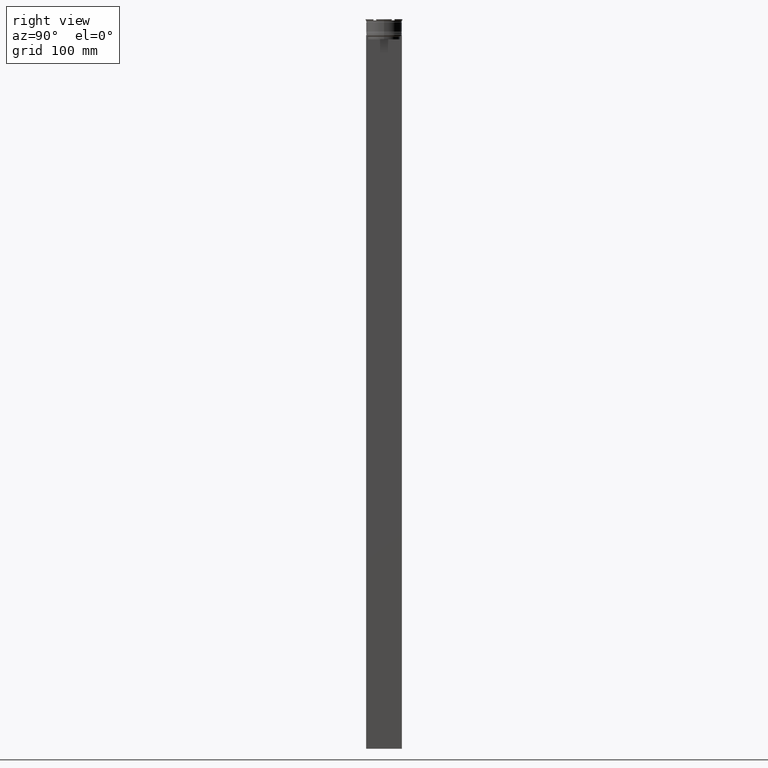
[diagram: clean part render]
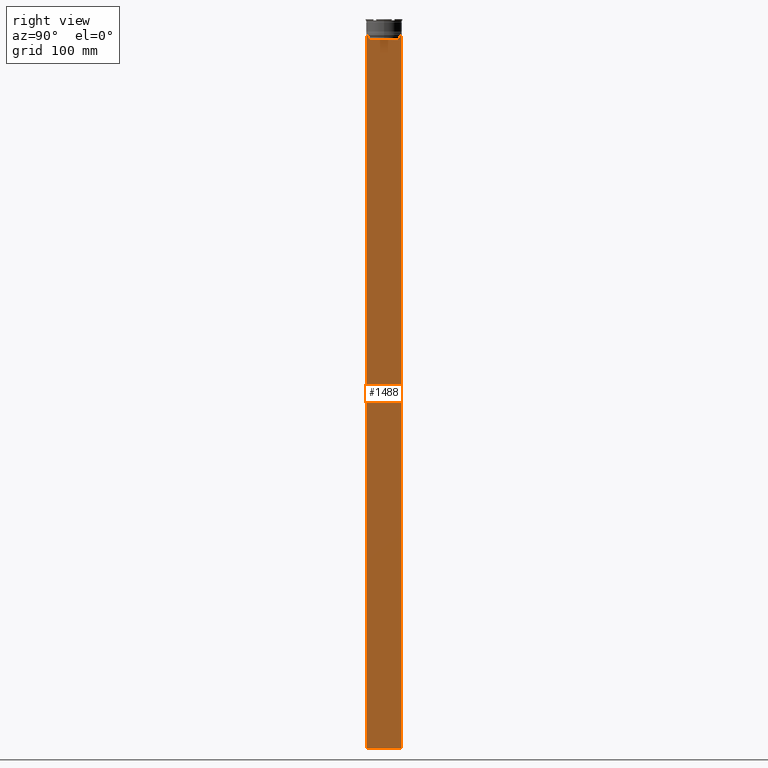
[diagram: same view with one face highlighted and labeled with its STEP entity id]
A machine part, right view. The second image highlights one B-rep face of the part: STEP entity #1488.
In plain terms, the highlighted planar face has unit normal (-1, 0, 0).
Its self-contained STEP definition (entity closure, byte-faithful):
#29 = ORIENTED_EDGE ( 'NONE', *, *, #2110, .T. ) ;
#30 = VERTEX_POINT ( 'NONE', #1885 ) ;
#62 = ORIENTED_EDGE ( 'NONE', *, *, #1076, .T. ) ;
#82 = DIRECTION ( 'NONE',  ( -0.000000000000000000, -0.000000000000000000, 1.000000000000000000 ) ) ;
#127 = DIRECTION ( 'NONE',  ( -1.000000000000000000, 0.000000000000000000, 0.000000000000000000 ) ) ;
#131 = CARTESIAN_POINT ( 'NONE',  ( 0.5000000000000001110, 14.99999999999999645, -14.00000000000000178 ) ) ;
#160 = EDGE_CURVE ( 'NONE', #1980, #283, #2201, .T. ) ;
#168 = LINE ( 'NONE', #1044, #600 ) ;
#169 = ORIENTED_EDGE ( 'NONE', *, *, #1353, .T. ) ;
#197 = VERTEX_POINT ( 'NONE', #2255 ) ;
#252 = CARTESIAN_POINT ( 'NONE',  ( 0.5000000000000001110, -15.00000000000000355, -14.00000000000000178 ) ) ;
#277 = CARTESIAN_POINT ( 'NONE',  ( 0.5000000000000001110, 13.39066839257847263, -14.49999999999999822 ) ) ;
#283 = VERTEX_POINT ( 'NONE', #695 ) ;
#353 = ORIENTED_EDGE ( 'NONE', *, *, #2148, .F. ) ;
#389 = CARTESIAN_POINT ( 'NONE',  ( 0.5000000000000001110, 13.40000000000000391, -17.00000000000000000 ) ) ;
#438 = ORIENTED_EDGE ( 'NONE', *, *, #2835, .T. ) ;
#469 = LINE ( 'NONE', #389, #1108 ) ;
#484 = CARTESIAN_POINT ( 'NONE',  ( 0.5000000000000001110, 13.89100428334828230, -14.00000000000000178 ) ) ;
#529 = CARTESIAN_POINT ( 'NONE',  ( 0.5000000000000001110, -15.00000000000000355, -614.0000000000000000 ) ) ;
#539 = CARTESIAN_POINT ( 'NONE',  ( 0.5000000000000001110, -15.00000000000000355, -14.00000000000000178 ) ) ;
#563 = CARTESIAN_POINT ( 'NONE',  ( 0.5000000000000001110, 13.39066839257847263, -14.49999999999999822 ) ) ;
#572 = CARTESIAN_POINT ( 'NONE',  ( 0.5000000000000001110, 13.72422766736833744, -14.16666868251365052 ) ) ;
#586 = CARTESIAN_POINT ( 'NONE',  ( 0.5000000000000001110, -15.00000000000000355, -14.00000000000000178 ) ) ;
#600 = VECTOR ( 'NONE', #1931, 1000.000000000000000 ) ;
#626 = DIRECTION ( 'NONE',  ( 0.000000000000000000, 0.000000000000000000, -1.000000000000000000 ) ) ;
#656 = LINE ( 'NONE', #903, #1113 ) ;
#691 = VECTOR ( 'NONE', #1221, 1000.000000000000000 ) ;
#692 = CARTESIAN_POINT ( 'NONE',  ( 0.5000000000000001110, -13.55744911241550099, -14.33333542435722663 ) ) ;
#695 = CARTESIAN_POINT ( 'NONE',  ( 0.5000000000000001110, -15.00000000000000355, -614.0000000000000000 ) ) ;
#714 = LINE ( 'NONE', #539, #1674 ) ;
#743 = ORIENTED_EDGE ( 'NONE', *, *, #2160, .T. ) ;
#768 = DIRECTION ( 'NONE',  ( 0.000000000000000000, -1.000000000000000000, 0.000000000000000000 ) ) ;
#840 = LINE ( 'NONE', #252, #2379 ) ;
#861 = EDGE_LOOP ( 'NONE', ( #2323, #62, #743, #1710, #2292, #2218, #1619, #169, #1634, #438, #353, #29 ) ) ;
#903 = CARTESIAN_POINT ( 'NONE',  ( 0.5000000000000001110, 14.99999999999999645, 16.01666203960726165 ) ) ;
#905 = EDGE_CURVE ( 'NONE', #30, #197, #2648, .T. ) ;
#936 = VERTEX_POINT ( 'NONE', #277 ) ;
#943 = VERTEX_POINT ( 'NONE', #1153 ) ;
#954 = LINE ( 'NONE', #1419, #1437 ) ;
#1003 = DIRECTION ( 'NONE',  ( 0.000000000000000000, 0.000000000000000000, 1.000000000000000000 ) ) ;
#1034 = CARTESIAN_POINT ( 'NONE',  ( 0.5000000000000001110, -13.39066839257847086, -17.00000000000000000 ) ) ;
#1044 = CARTESIAN_POINT ( 'NONE',  ( 0.5000000000000001110, -15.00000000000000355, -14.00000000000000178 ) ) ;
#1076 = EDGE_CURVE ( 'NONE', #1188, #936, #1599, .T. ) ;
#1089 = CARTESIAN_POINT ( 'NONE',  ( 0.5000000000000001110, -15.00000000000000355, 16.01666203960726165 ) ) ;
#1095 = EDGE_CURVE ( 'NONE', #197, #1558, #2118, .T. ) ;
#1108 = VECTOR ( 'NONE', #2259, 1000.000000000000000 ) ;
#1113 = VECTOR ( 'NONE', #2731, 1000.000000000000000 ) ;
#1121 = VERTEX_POINT ( 'NONE', #131 ) ;
#1153 = CARTESIAN_POINT ( 'NONE',  ( 0.5000000000000001110, 13.39066839257847086, -17.00000000000000000 ) ) ;
#1188 = VERTEX_POINT ( 'NONE', #484 ) ;
#1221 = DIRECTION ( 'NONE',  ( 0.000000000000000000, -1.000000000000000000, 0.000000000000000000 ) ) ;
#1258 = EDGE_CURVE ( 'NONE', #943, #2882, #469, .T. ) ;
#1340 = CARTESIAN_POINT ( 'NONE',  ( 0.5000000000000001110, -13.89100428334828230, -14.00000000000000178 ) ) ;
#1353 = EDGE_CURVE ( 'NONE', #1558, #1980, #714, .T. ) ;
#1357 = CARTESIAN_POINT ( 'NONE',  ( 0.5000000000000001110, -13.39066839257847263, -14.49999999999999822 ) ) ;
#1388 = DIRECTION ( 'NONE',  ( 0.000000000000000000, 0.000000000000000000, -1.000000000000000000 ) ) ;
#1396 = VECTOR ( 'NONE', #1412, 1000.000000000000000 ) ;
#1412 = DIRECTION ( 'NONE',  ( 0.000000000000000000, 1.000000000000000000, 0.000000000000000000 ) ) ;
#1419 = CARTESIAN_POINT ( 'NONE',  ( 0.5000000000000001110, -13.39066839257847263, 0.000000000000000000 ) ) ;
#1437 = VECTOR ( 'NONE', #82, 1000.000000000000000 ) ;
#1465 = FACE_OUTER_BOUND ( 'NONE', #861, .T. ) ;
#1481 = AXIS2_PLACEMENT_3D ( 'NONE', #1734, #127, #1003 ) ;
#1488 = ADVANCED_FACE ( 'NONE', ( #1465 ), #1886, .F. ) ;
#1509 = VERTEX_POINT ( 'NONE', #2616 ) ;
#1513 = VERTEX_POINT ( 'NONE', #2575 ) ;
#1558 = VERTEX_POINT ( 'NONE', #1722 ) ;
#1582 = CARTESIAN_POINT ( 'NONE',  ( 0.5000000000000001110, 13.39066839257847263, 0.000000000000000000 ) ) ;
#1585 = EDGE_CURVE ( 'NONE', #1509, #1188, #168, .T. ) ;
#1599 = B_SPLINE_CURVE_WITH_KNOTS ( 'NONE', 3,
 ( #1643, #572, #2332, #563 ),
 .UNSPECIFIED., .F., .F.,
 ( 4, 4 ),
 ( 0.02359665025569774102, 0.02430399458637444096 ),
 .UNSPECIFIED. ) ;
#1619 = ORIENTED_EDGE ( 'NONE', *, *, #1095, .T. ) ;
#1634 = ORIENTED_EDGE ( 'NONE', *, *, #160, .T. ) ;
#1643 = CARTESIAN_POINT ( 'NONE',  ( 0.5000000000000001110, 13.89100428334828230, -14.00000000000000178 ) ) ;
#1674 = VECTOR ( 'NONE', #768, 1000.000000000000000 ) ;
#1710 = ORIENTED_EDGE ( 'NONE', *, *, #1258, .T. ) ;
#1722 = CARTESIAN_POINT ( 'NONE',  ( 0.5000000000000001110, -14.89160837518903513, -14.00000000000000178 ) ) ;
#1731 = DIRECTION ( 'NONE',  ( 0.000000000000000000, -1.000000000000000000, 0.000000000000000000 ) ) ;
#1734 = CARTESIAN_POINT ( 'NONE',  ( 0.5000000000000001110, -15.00000000000000355, 16.01666203960726165 ) ) ;
#1786 = EDGE_CURVE ( 'NONE', #2882, #30, #954, .T. ) ;
#1885 = CARTESIAN_POINT ( 'NONE',  ( 0.5000000000000001110, -13.39066839257847263, -14.49999999999999822 ) ) ;
#1886 = PLANE ( 'NONE',  #1481 ) ;
#1931 = DIRECTION ( 'NONE',  ( 0.000000000000000000, -1.000000000000000000, 0.000000000000000000 ) ) ;
#1952 = VECTOR ( 'NONE', #1388, 1000.000000000000000 ) ;
#1980 = VERTEX_POINT ( 'NONE', #2595 ) ;
#2110 = EDGE_CURVE ( 'NONE', #1121, #1509, #840, .T. ) ;
#2118 = LINE ( 'NONE', #586, #691 ) ;
#2148 = EDGE_CURVE ( 'NONE', #1121, #1513, #656, .T. ) ;
#2160 = EDGE_CURVE ( 'NONE', #936, #943, #2539, .T. ) ;
#2201 = LINE ( 'NONE', #1089, #2793 ) ;
#2218 = ORIENTED_EDGE ( 'NONE', *, *, #905, .T. ) ;
#2255 = CARTESIAN_POINT ( 'NONE',  ( 0.5000000000000001110, -13.89100428334828230, -14.00000000000000178 ) ) ;
#2259 = DIRECTION ( 'NONE',  ( 0.000000000000000000, -1.000000000000000000, 0.000000000000000000 ) ) ;
#2266 = CARTESIAN_POINT ( 'NONE',  ( 0.5000000000000001110, -13.72422766745777167, -14.16666868242427135 ) ) ;
#2292 = ORIENTED_EDGE ( 'NONE', *, *, #1786, .T. ) ;
#2323 = ORIENTED_EDGE ( 'NONE', *, *, #1585, .T. ) ;
#2332 = CARTESIAN_POINT ( 'NONE',  ( 0.5000000000000001110, 13.55744911232272543, -14.33333542444994002 ) ) ;
#2379 = VECTOR ( 'NONE', #1731, 1000.000000000000000 ) ;
#2535 = LINE ( 'NONE', #529, #1396 ) ;
#2539 = LINE ( 'NONE', #1582, #1952 ) ;
#2575 = CARTESIAN_POINT ( 'NONE',  ( 0.5000000000000001110, 14.99999999999999645, -614.0000000000000000 ) ) ;
#2595 = CARTESIAN_POINT ( 'NONE',  ( 0.5000000000000001110, -15.00000000000000355, -14.00000000000000178 ) ) ;
#2616 = CARTESIAN_POINT ( 'NONE',  ( 0.5000000000000001110, 14.89160837518903513, -14.00000000000000178 ) ) ;
#2648 = B_SPLINE_CURVE_WITH_KNOTS ( 'NONE', 3,
 ( #1357, #692, #2266, #1340 ),
 .UNSPECIFIED., .F., .F.,
 ( 4, 4 ),
 ( 0.06160226316123722928, 0.06231007364084064498 ),
 .UNSPECIFIED. ) ;
#2731 = DIRECTION ( 'NONE',  ( 0.000000000000000000, 0.000000000000000000, -1.000000000000000000 ) ) ;
#2793 = VECTOR ( 'NONE', #626, 1000.000000000000000 ) ;
#2835 = EDGE_CURVE ( 'NONE', #283, #1513, #2535, .T. ) ;
#2882 = VERTEX_POINT ( 'NONE', #1034 ) ;